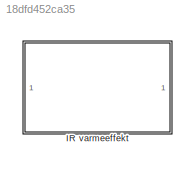
MODEL slx_18dfd452ca35
KIND library
CONFIG AbsTol = auto
CONFIG EnableMultiTasking = off
CONFIG FixedStep = auto
CONFIG MaxStep = auto
CONFIG MinStep = auto
CONFIG RelTol = 1e-3
CONFIG SampleTimeConstraint = Unconstrained
CONFIG SolverName = VariableStepAuto
CONFIG StartTime = 0.0
CONFIG StopTime = 10.0
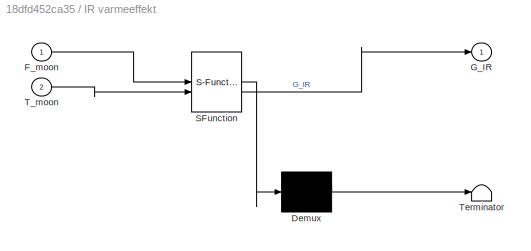
BLOCK [SubSystem]  IR varmeeffekt
  ErrorFcn = Stateflow.Translate.translate
  PermitHierarchicalResolution = ExplicitOnly
  SFBlockType = MATLAB Function
  TreatAsAtomicUnit = on
BLOCK [Demux]  IR varmeeffekt/ Demux 
  Outputs = 1
BLOCK [S-Function]  IR varmeeffekt/ SFunction 
  EnableBusSupport = off
  FunctionName = sf_sfun
  PortCounts = [2 2]
  SFcnIsStateOwnerBlock = off
  SFunctionDeploymentMode = off
  Tag = Stateflow S-Function 10
BLOCK [Terminator]  IR varmeeffekt/ Terminator 
BLOCK [Inport]  IR varmeeffekt/F_moon
BLOCK [Outport]  IR varmeeffekt/G_IR
BLOCK [Inport]  IR varmeeffekt/T_moon
  Port = 2
CHART  IR varmeeffekt states=1 transitions=1
  STATE_LABEL 'eML_blk_kernel()'
  STATE_LABEL 'SCRIPT:\nfunction G_IR = fcn(F_moon, T_moon)\n% G_IR: bestrålingseffekt af overflade (W/M^2)\n% eps_surf: IR-emissivitet (absorptans) af roverens overflade\n% A: areal af roverens overflade (m^2)\n% F_moon: view factor til månen (0 til 1)\n% T_moon: månens lokale overfladetemperatur (K)\n\n\nsigma = 5.670e-8; % Stefan-Boltzmann konstant (W/(m^2*K^4))\nepsilon_moon = 0.95; % månens emissivitet\n\n% Beregn den ...<+105ch>'
CHART  states=0 transitions=0
